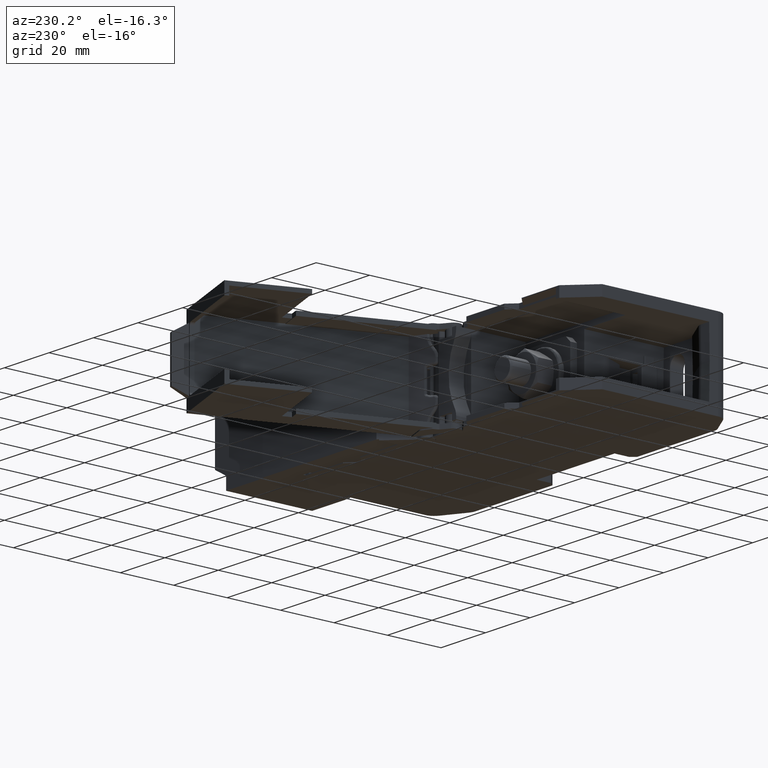
[diagram: clean part render]
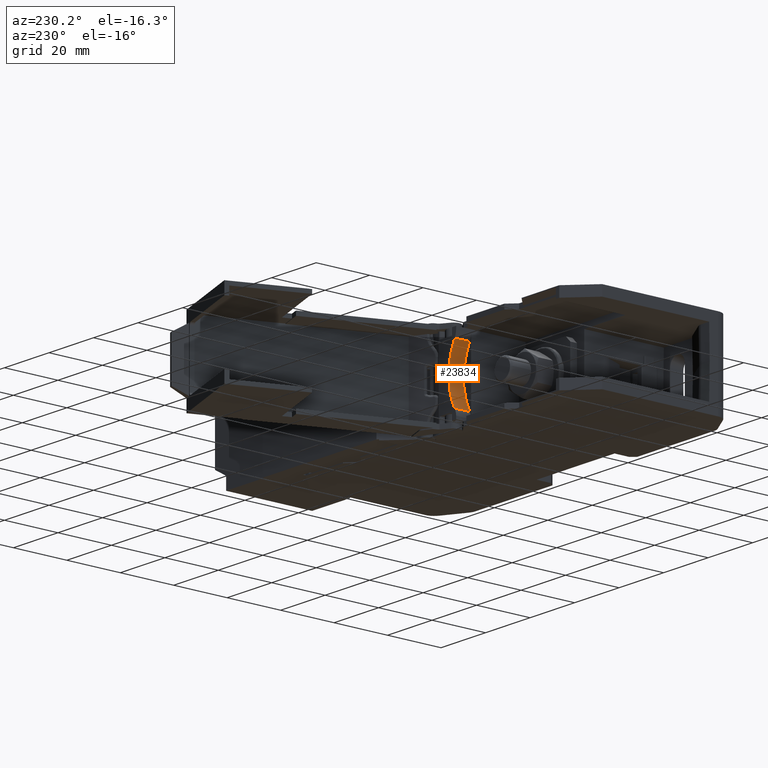
[diagram: same view with one face highlighted and labeled with its STEP entity id]
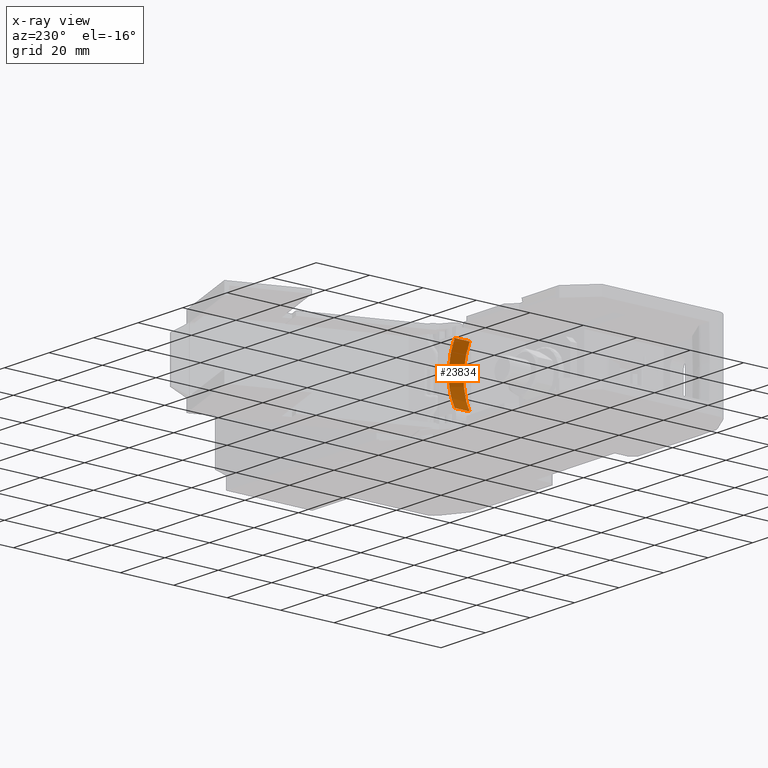
[diagram: x-ray of the same camera — body ghosted, the highlighted face saturated]
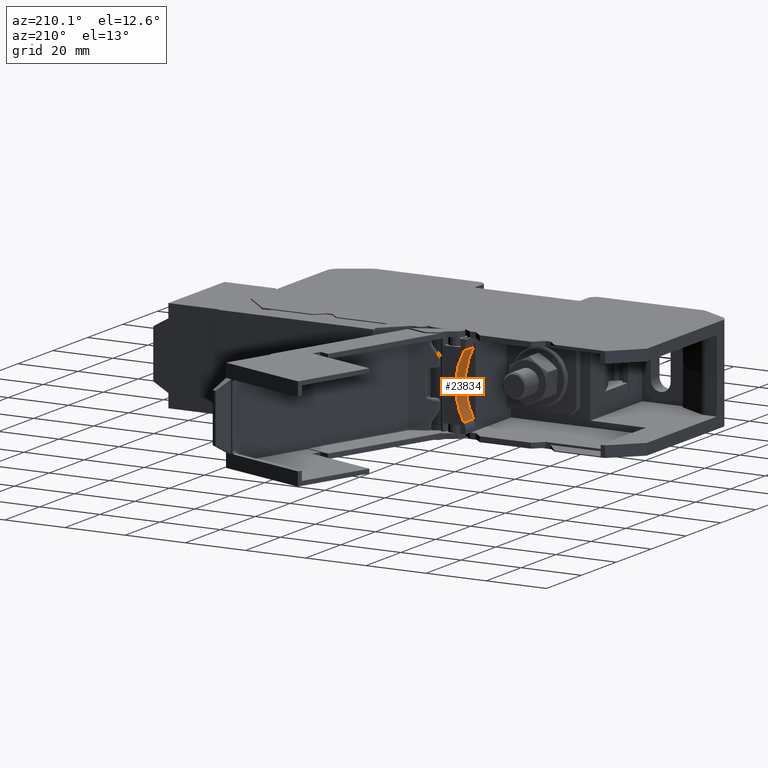
[diagram: same view with one face highlighted and labeled with its STEP entity id]
A machine part, auxiliary view. The second image highlights one B-rep face of the part: STEP entity #23834.
The next image is the same camera in x-ray: the body ghosted, the highlighted face saturated — about 0% of this face is hidden behind the body in this view.
A second angle (auxiliary view) of the same face is appended — the face is thin or edge-on in the first view.
In plain terms, the highlighted cylindrical surface (partial cylindrical patch) has radius 21.464 mm, axis along (0, 1, 0).
Its self-contained STEP definition (entity closure, byte-faithful):
#1633 = VECTOR ( 'NONE', #17160, 1000.000000000000000 ) ;
#2175 = EDGE_CURVE ( 'NONE', #12488, #12479, #15738, .T. ) ;
#2457 = AXIS2_PLACEMENT_3D ( 'NONE', #4916, #4917, #4918 ) ;
#4916 = CARTESIAN_POINT ( 'NONE',  ( 132.4957246608250000, -4.536379108292830000, 13.49999999999868200 ) ) ;
#4917 = DIRECTION ( 'NONE',  ( 0.0000000000000000000, 1.000000000000000000, 0.0000000000000000000 ) ) ;
#4918 = DIRECTION ( 'NONE',  ( 0.0000000000000000000, 0.0000000000000000000, 1.000000000000000000 ) ) ;
#4933 = FACE_OUTER_BOUND ( 'NONE', #9260, .T. ) ;
#4940 = CYLINDRICAL_SURFACE ( 'NONE', #2457, 21.46402936002295200 ) ;
#6498 = EDGE_CURVE ( 'NONE', #13402, #12488, #13648, .T. ) ;
#6550 = EDGE_CURVE ( 'NONE', #12520, #12486, #17154, .T. ) ;
#6584 = EDGE_CURVE ( 'NONE', #12486, #13447, #13640, .T. ) ;
#6592 = EDGE_CURVE ( 'NONE', #12520, #12479, #13644, .T. ) ;
#7856 = VECTOR ( 'NONE', #15772, 1000.000000000000000 ) ;
#9260 = EDGE_LOOP ( 'NONE', ( #25547, #25548, #25551, #25504, #25552, #24991, #24995, #25006 ) ) ;
#10777 = VERTEX_POINT ( 'NONE', #22626 ) ;
#11095 = EDGE_CURVE ( 'NONE', #13451, #13402, #24784, .T. ) ;
#11108 = EDGE_CURVE ( 'NONE', #13447, #10777, #24961, .T. ) ;
#11110 = EDGE_CURVE ( 'NONE', #10777, #13451, #16225, .T. ) ;
#12479 = VERTEX_POINT ( 'NONE', #26257 ) ;
#12486 = VERTEX_POINT ( 'NONE', #26278 ) ;
#12488 = VERTEX_POINT ( 'NONE', #26274 ) ;
#12520 = VERTEX_POINT ( 'NONE', #26345 ) ;
#13402 = VERTEX_POINT ( 'NONE', #27208 ) ;
#13447 = VERTEX_POINT ( 'NONE', #27270 ) ;
#13451 = VERTEX_POINT ( 'NONE', #27269 ) ;
#13640 = B_SPLINE_CURVE_WITH_KNOTS ( 'NONE', 3,
 ( #17215, #17217, #17292, #17269 ),
 .UNSPECIFIED., .F., .F.,
 ( 4, 4 ),
 ( 0.0000000000000000000, 1.000000000000000000 ),
 .UNSPECIFIED. ) ;
#13644 = B_SPLINE_CURVE_WITH_KNOTS ( 'NONE', 3,
 ( #17308, #17304, #17346, #17327, #17331, #17315, #17319, #17297, #17322, #17323 ),
 .UNSPECIFIED., .F., .F.,
 ( 4, 2, 2, 2, 4 ),
 ( 0.0000000000000000000, 0.2500000000000000000, 0.5000000000000000000, 0.7500000000000000000, 1.000000000000000000 ),
 .UNSPECIFIED. ) ;
#13648 = B_SPLINE_CURVE_WITH_KNOTS ( 'NONE', 3,
 ( #16918, #16921, #16958, #16914 ),
 .UNSPECIFIED., .F., .F.,
 ( 4, 4 ),
 ( 0.0000000000000000000, 1.000000000000000000 ),
 .UNSPECIFIED. ) ;
#15738 = LINE ( 'NONE', #15748, #7856 ) ;
#15748 = CARTESIAN_POINT ( 'NONE',  ( 151.2225632736954400, -4.536379108292830000, 3.011431368606385400 ) ) ;
#15772 = DIRECTION ( 'NONE',  ( 0.0000000000000000000, 1.000000000000000000, 0.0000000000000000000 ) ) ;
#16225 = B_SPLINE_CURVE_WITH_KNOTS ( 'NONE', 3,
 ( #24935, #24963, #24947, #24969, #24948, #24932, #24962, #24950, #24959, #24956, #24951, #24957, #24965, #24967, #24972, #23512, #23523, #23529, #23568, #23561, #23591, #23553 ),
 .UNSPECIFIED., .F., .F.,
 ( 4, 1, 1, 1, 2, 2, 2, 2, 1, 1, 1, 2, 2, 4 ),
 ( 0.0000000000000000000, 0.1250000000000064400, 0.1875000000000089400, 0.2187500000000101900, 0.2343750000000104600, 0.2500000000000107100, 0.3750000000000115500, 0.5000000000000126600, 0.6250000000000138800, 0.6875000000000139900, 0.7187500000000138800, 0.7343750000000135400, 0.7500000000000131000, 1.000000000000000000 ),
 .UNSPECIFIED. ) ;
#16914 = CARTESIAN_POINT ( 'NONE',  ( 151.2225632736955000, 29.87389095469716700, 3.011431368606355200 ) ) ;
#16918 = CARTESIAN_POINT ( 'NONE',  ( 152.6589002818910200, 29.87389095469716700, 6.141270133916059100 ) ) ;
#16921 = CARTESIAN_POINT ( 'NONE',  ( 152.2638164599714200, 29.87389095469716700, 5.059581383019851100 ) ) ;
#16958 = CARTESIAN_POINT ( 'NONE',  ( 151.7850374572395800, 29.87389095469716700, 4.016301794583278600 ) ) ;
#17139 = CARTESIAN_POINT ( 'NONE',  ( 151.2225632736953900, -4.536379108292830000, 23.98856863139140200 ) ) ;
#17154 = LINE ( 'NONE', #17139, #1633 ) ;
#17160 = DIRECTION ( 'NONE',  ( -0.0000000000000000000, -1.000000000000000000, -0.0000000000000000000 ) ) ;
#17215 = CARTESIAN_POINT ( 'NONE',  ( 151.2225632736954400, 29.87389095469716700, 23.98856863139139200 ) ) ;
#17217 = CARTESIAN_POINT ( 'NONE',  ( 151.7850374572395500, 29.87389095469716700, 22.98369820541414700 ) ) ;
#17269 = CARTESIAN_POINT ( 'NONE',  ( 152.6589002818910500, 29.87389095469716700, 20.85872986608127600 ) ) ;
#17292 = CARTESIAN_POINT ( 'NONE',  ( 152.2638164599714500, 29.87389095469716700, 21.94041861697744600 ) ) ;
#17297 = CARTESIAN_POINT ( 'NONE',  ( 152.8029948436298800, 35.50000057880255600, 6.312850410555328500 ) ) ;
#17304 = CARTESIAN_POINT ( 'NONE',  ( 152.1150546015064200, 35.50000057880254900, 22.39506796922479700 ) ) ;
#17308 = CARTESIAN_POINT ( 'NONE',  ( 151.2225632736953900, 35.50000057880254900, 23.98856863139141300 ) ) ;
#17315 = CARTESIAN_POINT ( 'NONE',  ( 153.9597540208479800, 35.50000057880255600, 11.67358681275364200 ) ) ;
#17319 = CARTESIAN_POINT ( 'NONE',  ( 153.7253770933270100, 35.50000057880254900, 9.847302490810061900 ) ) ;
#17322 = CARTESIAN_POINT ( 'NONE',  ( 152.1150546015065900, 35.50000057880254900, 4.604932030772942200 ) ) ;
#17323 = CARTESIAN_POINT ( 'NONE',  ( 151.2225632736955000, 35.50000057880254900, 3.011431368606357400 ) ) ;
#17327 = CARTESIAN_POINT ( 'NONE',  ( 153.7253770933269300, 35.50000057880254200, 17.15269750918771100 ) ) ;
#17331 = CARTESIAN_POINT ( 'NONE',  ( 153.9597540208479200, 35.50000057880254900, 15.32641318724413400 ) ) ;
#17346 = CARTESIAN_POINT ( 'NONE',  ( 152.8029948436297600, 35.50000057880254900, 20.68714958944243100 ) ) ;
#21116 = VECTOR ( 'NONE', #24970, 1000.000000000000000 ) ;
#21154 = VECTOR ( 'NONE', #24818, 1000.000000000000000 ) ;
#22626 = CARTESIAN_POINT ( 'NONE',  ( 152.6589002818910500, 29.90522374626915100, 20.85872986608127300 ) ) ;
#23512 = CARTESIAN_POINT ( 'NONE',  ( 153.7180313886212800, 29.90522374626915400, 10.28105490354190700 ) ) ;
#23523 = CARTESIAN_POINT ( 'NONE',  ( 153.6803100327972800, 29.90522374626915800, 10.04696675216392900 ) ) ;
#23529 = CARTESIAN_POINT ( 'NONE',  ( 153.6542946252778800, 29.90522374626914000, 9.890970553076092700 ) ) ;
#23553 = CARTESIAN_POINT ( 'NONE',  ( 152.6589002818910200, 29.90522374626915100, 6.141270133916058200 ) ) ;
#23561 = CARTESIAN_POINT ( 'NONE',  ( 153.4091606317345800, 29.90522374626915400, 8.511644147667325900 ) ) ;
#23568 = CARTESIAN_POINT ( 'NONE',  ( 153.6405910142141800, 29.90522374626915100, 9.811532210426186400 ) ) ;
#23591 = CARTESIAN_POINT ( 'NONE',  ( 153.0864682382637300, 29.90522374626915100, 7.313711456727852500 ) ) ;
#23834 = ADVANCED_FACE ( 'NONE', ( #4933 ), #4940, .F. ) ;
#24784 = LINE ( 'NONE', #24808, #21154 ) ;
#24808 = CARTESIAN_POINT ( 'NONE',  ( 152.6589002818909900, 29.90522374626915100, 6.141270133916059100 ) ) ;
#24818 = DIRECTION ( 'NONE',  ( -0.0000000000000000000, -1.000000000000000000, 0.0000000000000000000 ) ) ;
#24922 = CARTESIAN_POINT ( 'NONE',  ( 152.6589002818909900, 29.90522374626915100, 20.85872986608128000 ) ) ;
#24932 = CARTESIAN_POINT ( 'NONE',  ( 153.5703339177419800, 29.90522374626914700, 17.57067641243243000 ) ) ;
#24935 = CARTESIAN_POINT ( 'NONE',  ( 152.6589002818910500, 29.90522374626915100, 20.85872986608127300 ) ) ;
#24947 = CARTESIAN_POINT ( 'NONE',  ( 153.1534966220778800, 29.90522374626915800, 19.38508627361752800 ) ) ;
#24948 = CARTESIAN_POINT ( 'NONE',  ( 153.5257130363125100, 29.90522374626916100, 17.79942771420331800 ) ) ;
#24950 = CARTESIAN_POINT ( 'NONE',  ( 153.6131216509084000, 29.90522374626915400, 17.34264492693461400 ) ) ;
#24951 = CARTESIAN_POINT ( 'NONE',  ( 153.9319040984399900, 29.90522374626915400, 14.76365260867140500 ) ) ;
#24956 = CARTESIAN_POINT ( 'NONE',  ( 153.8209785789252100, 29.90522374626915400, 16.01862987309274500 ) ) ;
#24957 = CARTESIAN_POINT ( 'NONE',  ( 153.9596752145253300, 29.90522374626914700, 14.13149301604844700 ) ) ;
#24959 = CARTESIAN_POINT ( 'NONE',  ( 153.7378239534655800, 29.90522374626915100, 16.64322672388624400 ) ) ;
#24961 = LINE ( 'NONE', #24922, #21116 ) ;
#24962 = CARTESIAN_POINT ( 'NONE',  ( 153.5992666108822100, 29.90522374626915400, 17.41796329216364100 ) ) ;
#24963 = CARTESIAN_POINT ( 'NONE',  ( 152.8723783919683400, 29.90522374626914400, 20.27334767558902900 ) ) ;
#24965 = CARTESIAN_POINT ( 'NONE',  ( 153.9598328271704900, 29.90522374626915100, 12.86850698394862200 ) ) ;
#24967 = CARTESIAN_POINT ( 'NONE',  ( 153.9182948620944000, 29.90522374626916100, 11.92427074775318200 ) ) ;
#24969 = CARTESIAN_POINT ( 'NONE',  ( 153.4130447542778800, 29.90522374626915400, 18.33095210124271500 ) ) ;
#24970 = DIRECTION ( 'NONE',  ( 0.0000000000000000000, 1.000000000000000000, -0.0000000000000000000 ) ) ;
#24972 = CARTESIAN_POINT ( 'NONE',  ( 153.7969355973589500, 29.90522374626915400, 10.82791755931418000 ) ) ;
#24991 = ORIENTED_EDGE ( 'NONE', *, *, #11108, .F. ) ;
#24995 = ORIENTED_EDGE ( 'NONE', *, *, #6584, .F. ) ;
#25006 = ORIENTED_EDGE ( 'NONE', *, *, #6550, .F. ) ;
#25504 = ORIENTED_EDGE ( 'NONE', *, *, #11095, .F. ) ;
#25547 = ORIENTED_EDGE ( 'NONE', *, *, #6592, .T. ) ;
#25548 = ORIENTED_EDGE ( 'NONE', *, *, #2175, .F. ) ;
#25551 = ORIENTED_EDGE ( 'NONE', *, *, #6498, .F. ) ;
#25552 = ORIENTED_EDGE ( 'NONE', *, *, #11110, .F. ) ;
#26257 = CARTESIAN_POINT ( 'NONE',  ( 151.2225632736955000, 35.50000057880254900, 3.011431368606357400 ) ) ;
#26274 = CARTESIAN_POINT ( 'NONE',  ( 151.2225632736955000, 29.87389095469716700, 3.011431368606355200 ) ) ;
#26278 = CARTESIAN_POINT ( 'NONE',  ( 151.2225632736954400, 29.87389095469716700, 23.98856863139139200 ) ) ;
#26345 = CARTESIAN_POINT ( 'NONE',  ( 151.2225632736953900, 35.50000057880254900, 23.98856863139141300 ) ) ;
#27208 = CARTESIAN_POINT ( 'NONE',  ( 152.6589002818910200, 29.87389095469716700, 6.141270133916059100 ) ) ;
#27269 = CARTESIAN_POINT ( 'NONE',  ( 152.6589002818910200, 29.90522374626915100, 6.141270133916058200 ) ) ;
#27270 = CARTESIAN_POINT ( 'NONE',  ( 152.6589002818910500, 29.87389095469716700, 20.85872986608127600 ) ) ;